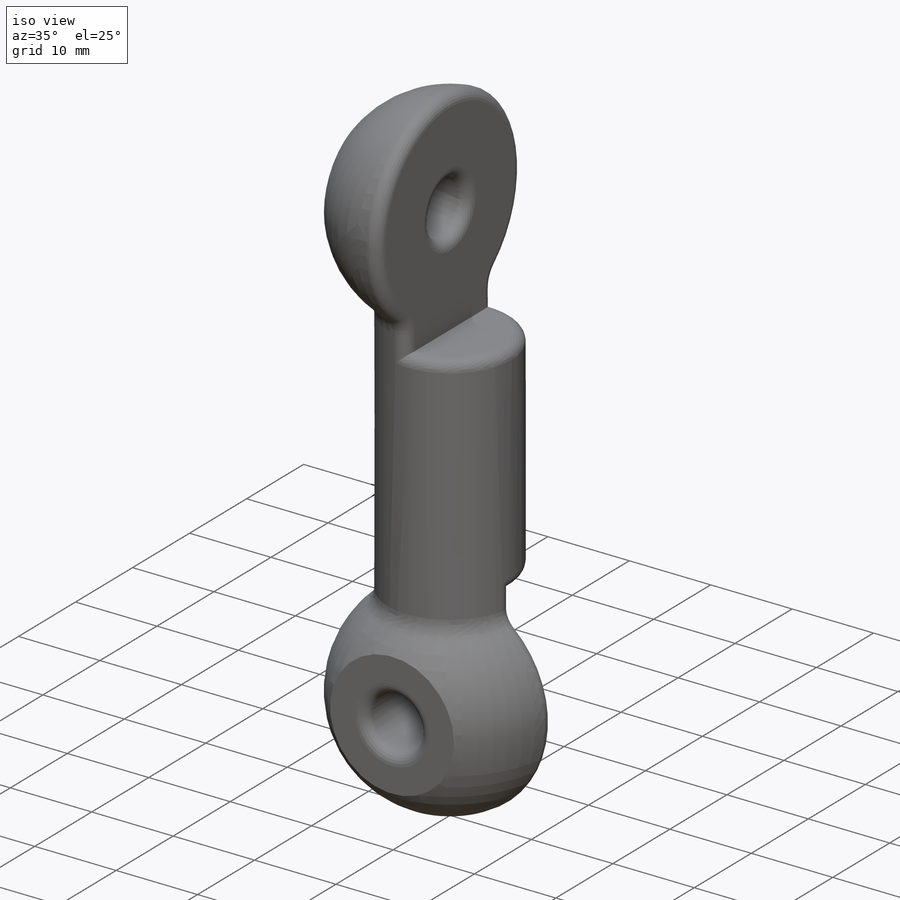
[diagram: iso view]
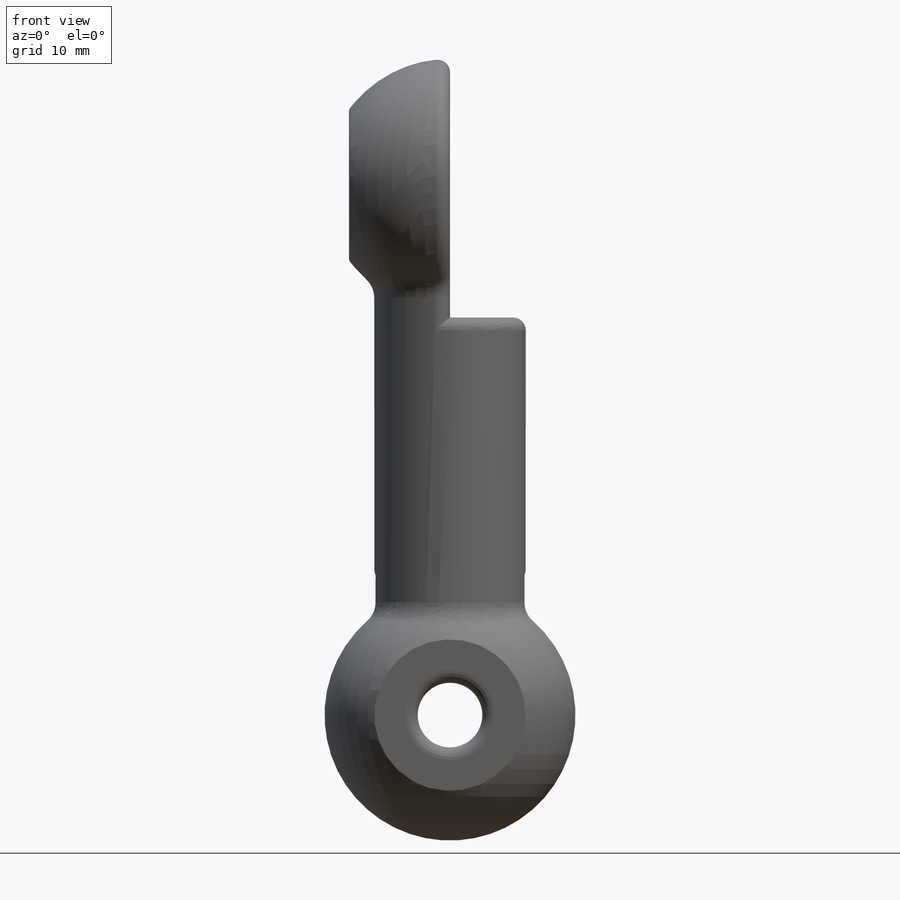
[diagram: front view]
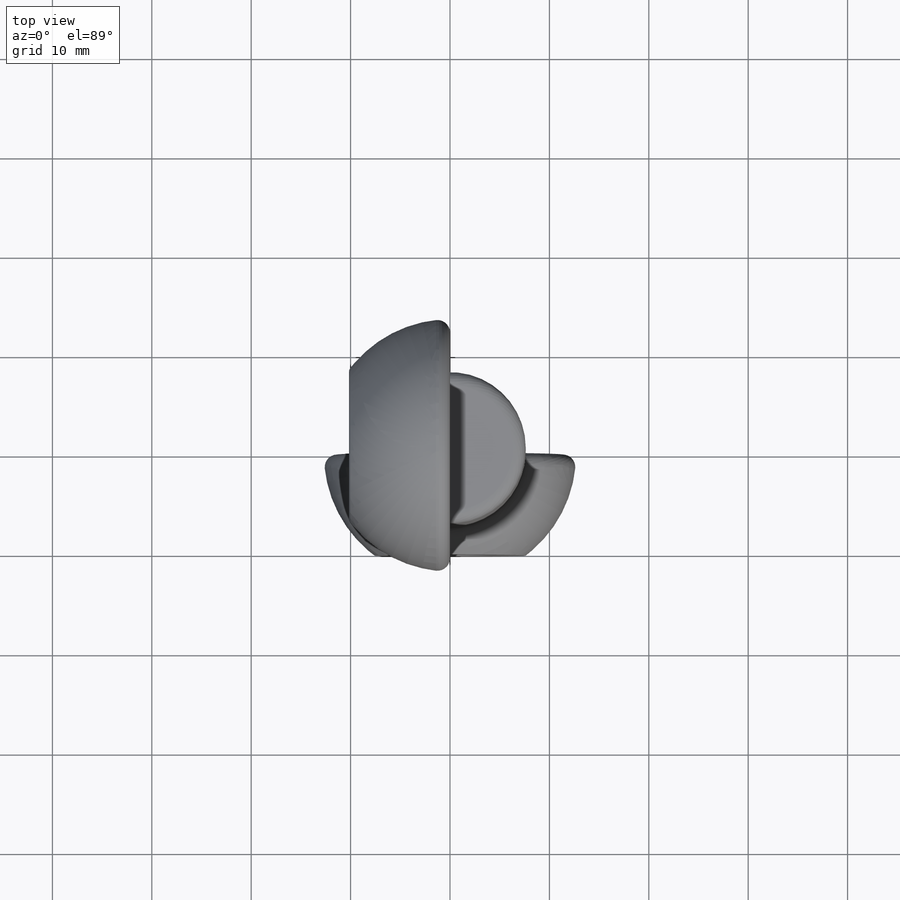
[diagram: top view]
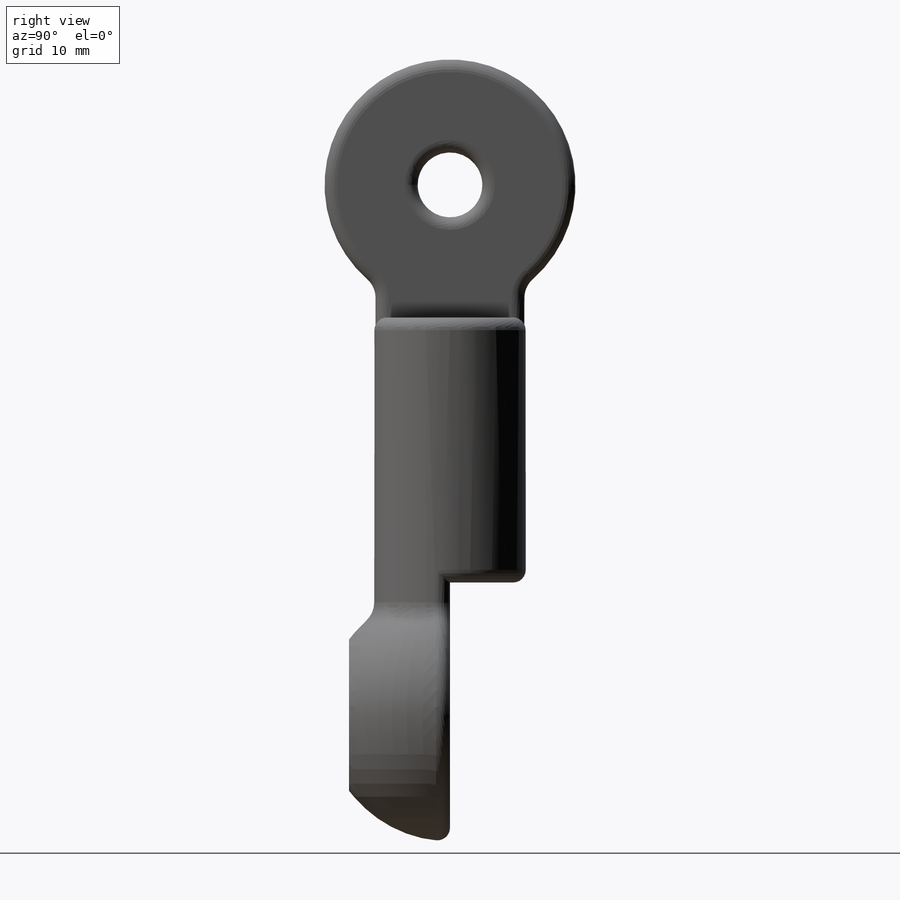
[diagram: right view]
SOLIDWORKS PART (.sldprt)
format: sldprt  version: not decoded by parser v0  size: 919,040 bytes
history: native  units: mm
features: sketch x12, extrude x5, boolean_combine x5, plane x3, fillet x3, hole x2, material x1, revolve x1 (+15 scaffold rows collapsed)
feature tree (47):
  scaffold x15  (default folders/planes/origin — collapsed)
  material  "Material <not specified>"
  sketch  "Sketch1"  dims[c1.D5=12.7mm c1.D6=12.7mm c1.D1=63.5mm c1.D2=33.02mm c1.D3=53.34mm c1.D4=78.74mm c2.D1=7.62mm]
  revolve  "main body"  Angle=360deg
  sketch  "Sketch2"  dims[D1=53.34mm D2=13.335mm D3=20.32mm D4=20.32mm D5=50.8mm]
  sketch  "Sketch11"  dims[c1.D1=13.335mm c1.D2=25.4mm c1.D3=25.4mm c2.D3=90.0deg]
  extrude  "Boss-Extrude5"  Depth=25.4mm
  boolean_combine  "Combine1"
  sketch  "Sketch3"  dims[D1=13.335mm D2=25.4mm]
  extrude  "cookie cutter bottom"  Depth=25.4mm
  plane  "slicer plane 1"  Offset=10.16mm
  boolean_combine  "Combine2"
  sketch  "Sketch4"  dims[D1=25.4mm D2=25.4mm]
  extrude  "outside face cookieCutter"  Depth=25.4mm
  plane  "slicer plane 2"  Offset=10.16mm
  boolean_combine  "Combine3"
  plane  "Plane1"  Offset=10.16mm
  sketch  "Sketch12"  dims[D1=53.34mm D2=25.4mm D3=25.4mm]
  extrude  "Boss-Extrude6"  Depth=25.4mm
  boolean_combine  "Combine4"
  hole  "#97 (0.0059) Diameter Hole1"  Diameter=6.5278mm Depth=12.7mm
  sketch  "Sketch16"  dims[D1=~2.511766mm]
  sketch  "Sketch15"  dims[hole-wizard template sketch: 60 standard entries collapsed; hole parameters kept: c18.Thru Hole Depth=12.7mm]
  hole  "#97 (0.0059) Diameter Hole2"  Diameter=6.5278mm Depth=12.7mm
  sketch  "Sketch20"
  sketch  "Sketch19"  dims[hole-wizard template sketch: 60 standard entries collapsed; hole parameters kept: c18.Thru Hole Depth=12.7mm]
  fillet  "Fillet2"  Radius=2.54mm
  sketch  "Sketch21"  dims[D1=10.16mm]
  sketch  "Sketch22"  dims[D1=10.922mm D2=10.922mm]
  extrude  "Boss-Extrude7"  Depth=5.08mm
  boolean_combine  "Combine5"
  fillet  "Fillet3"  Radius=1.27mm
  fillet  "Fillet4"  Radius=0.635mm
decode coverage: 22 of 28 modeling features carry decoded parameters
note: ~ marks probable driven/reference dimensions
note: suppression state not decoded; provenance and decode notes live in map.json
